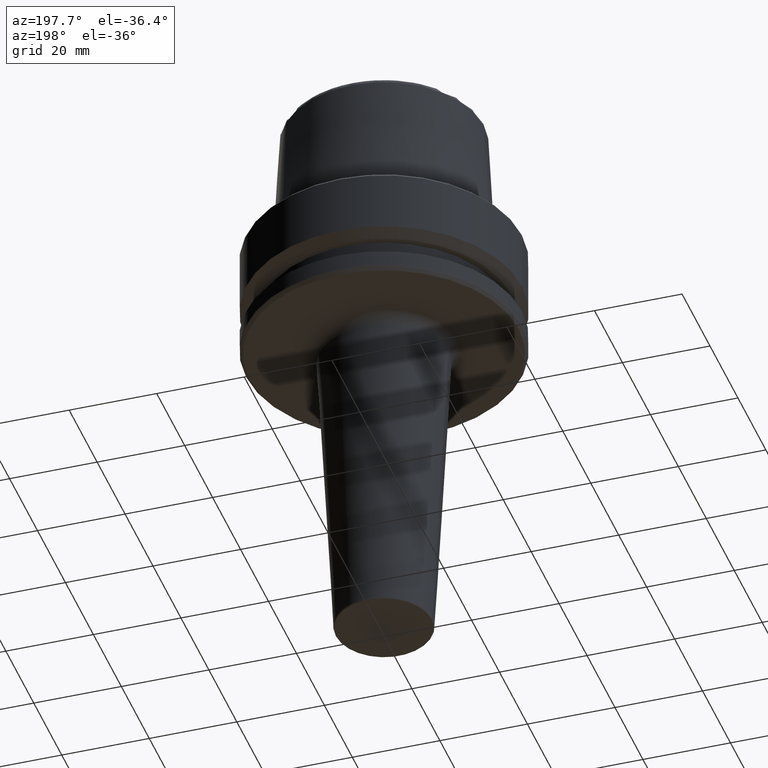
[diagram: clean part render]
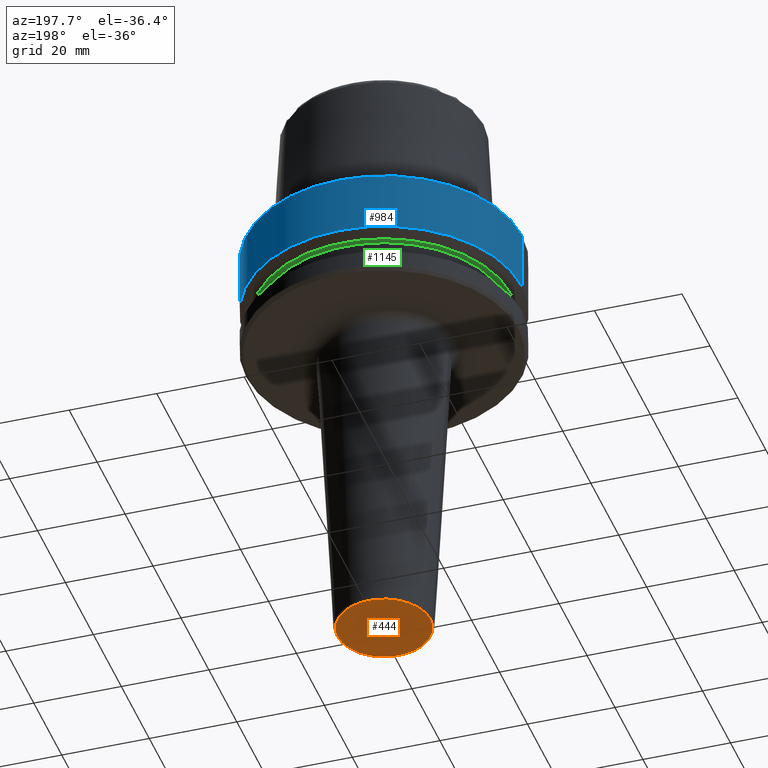
[diagram: same view with three faces highlighted in distinct colors, each labeled with its STEP entity id]
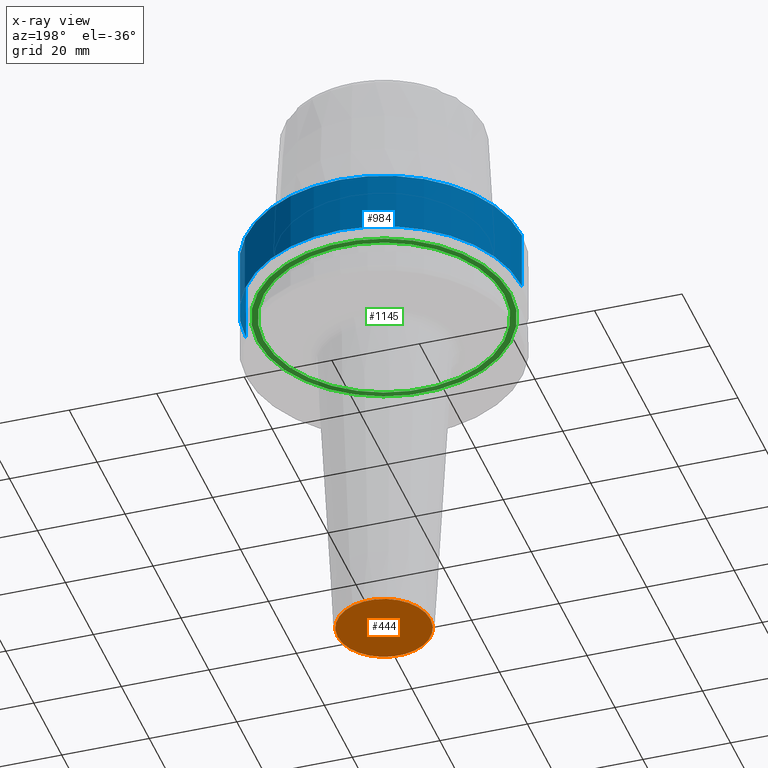
[diagram: x-ray of the same camera — body ghosted, the three highlighted faces saturated]
A machine part, auxiliary view with three faces highlighted in distinct colors.
The next image is the same camera in x-ray (body ghosted, the three faces saturated) — at least one of them is partly hidden behind the body in this view.
Their STEP definitions:

[orange] entity #444 — the highlighted planar face has unit normal (0, -0, 1).
#81 = ORIENTED_EDGE ( 'NONE', *, *, #314, .F. ) ;
#122 = DIRECTION ( 'NONE',  ( 1.000000000000000000, 0.0000000000000000000, 0.0000000000000000000 ) ) ;
#125 = CARTESIAN_POINT ( 'NONE',  ( 0.0000000000000000000, 0.0000000000000000000, -100.0000000000000000 ) ) ;
#144 = EDGE_LOOP ( 'NONE', ( #81, #1113 ) ) ;
#195 = PLANE ( 'NONE',  #1063 ) ;
#211 = DIRECTION ( 'NONE',  ( -0.0000000000000000000, -0.0000000000000000000, 1.000000000000000000 ) ) ;
#262 = CARTESIAN_POINT ( 'NONE',  ( 0.0000000000000000000, 0.0000000000000000000, -100.0000000000000000 ) ) ;
#286 = FACE_OUTER_BOUND ( 'NONE', #144, .T. ) ;
#298 = CIRCLE ( 'NONE', #414, 10.62041417331405000 ) ;
#314 = EDGE_CURVE ( 'NONE', #546, #1069, #1150, .T. ) ;
#392 = DIRECTION ( 'NONE',  ( 0.0000000000000000000, -0.0000000000000000000, 1.000000000000000000 ) ) ;
#414 = AXIS2_PLACEMENT_3D ( 'NONE', #262, #936, #1032 ) ;
#444 = ADVANCED_FACE ( 'NONE', ( #286 ), #195, .F. ) ;
#446 = EDGE_CURVE ( 'NONE', #1069, #546, #298, .T. ) ;
#546 = VERTEX_POINT ( 'NONE', #653 ) ;
#653 = CARTESIAN_POINT ( 'NONE',  ( 10.62041417331405000, 0.0000000000000000000, -100.0000000000000000 ) ) ;
#668 = CARTESIAN_POINT ( 'NONE',  ( 0.0000000000000000000, 10.62041417331405000, -100.0000000000000000 ) ) ;
#881 = DIRECTION ( 'NONE',  ( 1.000000000000000000, 0.0000000000000000000, 0.0000000000000000000 ) ) ;
#936 = DIRECTION ( 'NONE',  ( -0.0000000000000000000, -0.0000000000000000000, 1.000000000000000000 ) ) ;
#1032 = DIRECTION ( 'NONE',  ( 1.000000000000000000, 0.0000000000000000000, 0.0000000000000000000 ) ) ;
#1063 = AXIS2_PLACEMENT_3D ( 'NONE', #668, #392, #881 ) ;
#1069 = VERTEX_POINT ( 'NONE', #1118 ) ;
#1113 = ORIENTED_EDGE ( 'NONE', *, *, #446, .F. ) ;
#1118 = CARTESIAN_POINT ( 'NONE',  ( -10.62041417331405000, 1.325084991562247200E-015, -100.0000000000000000 ) ) ;
#1150 = CIRCLE ( 'NONE', #1198, 10.62041417331405000 ) ;
#1198 = AXIS2_PLACEMENT_3D ( 'NONE', #125, #211, #122 ) ;

[blue] entity #984 — the highlighted cylindrical surface (partial cylindrical patch) has radius 31.5 mm, axis along (-0, -0, 1).
#16 = CARTESIAN_POINT ( 'NONE',  ( 0.0000000000000000000, 0.0000000000000000000, -0.9656854249492363700 ) ) ;
#65 = VECTOR ( 'NONE', #111, 1000.000000000000000 ) ;
#77 = DIRECTION ( 'NONE',  ( -0.0000000000000000000, -0.0000000000000000000, 1.000000000000000000 ) ) ;
#78 = VERTEX_POINT ( 'NONE', #736 ) ;
#82 = FACE_OUTER_BOUND ( 'NONE', #421, .T. ) ;
#92 = EDGE_CURVE ( 'NONE', #857, #78, #1230, .T. ) ;
#96 = CARTESIAN_POINT ( 'NONE',  ( -31.50000000000000000, 3.857637417314162700E-015, -14.62250092524070100 ) ) ;
#104 = CARTESIAN_POINT ( 'NONE',  ( 0.0000000000000000000, 0.0000000000000000000, 78.96908074195309300 ) ) ;
#109 = AXIS2_PLACEMENT_3D ( 'NONE', #104, #186, #721 ) ;
#111 = DIRECTION ( 'NONE',  ( -0.0000000000000000000, -0.0000000000000000000, 1.000000000000000000 ) ) ;
#116 = CARTESIAN_POINT ( 'NONE',  ( -31.50000000000000000, 3.857637417314162700E-015, 78.96908074195309300 ) ) ;
#147 = CYLINDRICAL_SURFACE ( 'NONE', #109, 31.50000000000000000 ) ;
#166 = EDGE_CURVE ( 'NONE', #1157, #78, #1054, .T. ) ;
#186 = DIRECTION ( 'NONE',  ( -0.0000000000000000000, -0.0000000000000000000, 1.000000000000000000 ) ) ;
#224 = CARTESIAN_POINT ( 'NONE',  ( 31.50000000000000000, 0.0000000000000000000, 78.96908074195309300 ) ) ;
#421 = EDGE_LOOP ( 'NONE', ( #884, #1192, #1092, #861 ) ) ;
#423 = CARTESIAN_POINT ( 'NONE',  ( 31.50000000000000700, 0.0000000000000000000, -0.9656854249492363700 ) ) ;
#505 = EDGE_CURVE ( 'NONE', #1132, #1157, #703, .T. ) ;
#675 = DIRECTION ( 'NONE',  ( 1.000000000000000000, 0.0000000000000000000, 0.0000000000000000000 ) ) ;
#703 = CIRCLE ( 'NONE', #746, 31.50000000000000000 ) ;
#716 = DIRECTION ( 'NONE',  ( 1.000000000000000000, 0.0000000000000000000, 0.0000000000000000000 ) ) ;
#721 = DIRECTION ( 'NONE',  ( 1.000000000000000000, 0.0000000000000000000, 0.0000000000000000000 ) ) ;
#726 = EDGE_CURVE ( 'NONE', #1132, #857, #1007, .T. ) ;
#736 = CARTESIAN_POINT ( 'NONE',  ( -31.50000000000000700, 3.857637417314163500E-015, -0.9656854249492363700 ) ) ;
#746 = AXIS2_PLACEMENT_3D ( 'NONE', #774, #77, #675 ) ;
#756 = DIRECTION ( 'NONE',  ( -0.0000000000000000000, -0.0000000000000000000, 1.000000000000000000 ) ) ;
#774 = CARTESIAN_POINT ( 'NONE',  ( 0.0000000000000000000, 0.0000000000000000000, -14.62250092524070100 ) ) ;
#857 = VERTEX_POINT ( 'NONE', #423 ) ;
#861 = ORIENTED_EDGE ( 'NONE', *, *, #726, .F. ) ;
#884 = ORIENTED_EDGE ( 'NONE', *, *, #505, .T. ) ;
#938 = AXIS2_PLACEMENT_3D ( 'NONE', #16, #1136, #716 ) ;
#984 = ADVANCED_FACE ( 'NONE', ( #82 ), #147, .T. ) ;
#985 = CARTESIAN_POINT ( 'NONE',  ( 31.50000000000000000, 0.0000000000000000000, -14.62250092524070100 ) ) ;
#1007 = LINE ( 'NONE', #224, #65 ) ;
#1054 = LINE ( 'NONE', #116, #1107 ) ;
#1092 = ORIENTED_EDGE ( 'NONE', *, *, #92, .F. ) ;
#1107 = VECTOR ( 'NONE', #756, 1000.000000000000000 ) ;
#1132 = VERTEX_POINT ( 'NONE', #985 ) ;
#1136 = DIRECTION ( 'NONE',  ( -0.0000000000000000000, -0.0000000000000000000, 1.000000000000000000 ) ) ;
#1157 = VERTEX_POINT ( 'NONE', #96 ) ;
#1192 = ORIENTED_EDGE ( 'NONE', *, *, #166, .T. ) ;
#1230 = CIRCLE ( 'NONE', #938, 31.50000000000000700 ) ;

[green] entity #1145 — the highlighted planar face has unit normal (0, -0, 1).
#20 = DIRECTION ( 'NONE',  ( -0.0000000000000000000, -0.0000000000000000000, 1.000000000000000000 ) ) ;
#34 = FACE_BOUND ( 'NONE', #1244, .T. ) ;
#66 = AXIS2_PLACEMENT_3D ( 'NONE', #416, #1180, #1163 ) ;
#101 = CIRCLE ( 'NONE', #66, 27.49999999999999600 ) ;
#161 = CIRCLE ( 'NONE', #1027, 28.94089653438085100 ) ;
#249 = AXIS2_PLACEMENT_3D ( 'NONE', #999, #631, #1202 ) ;
#278 = ORIENTED_EDGE ( 'NONE', *, *, #1023, .F. ) ;
#323 = PLANE ( 'NONE',  #691 ) ;
#339 = DIRECTION ( 'NONE',  ( 1.000000000000000000, 0.0000000000000000000, 0.0000000000000000000 ) ) ;
#406 = FACE_OUTER_BOUND ( 'NONE', #843, .T. ) ;
#416 = CARTESIAN_POINT ( 'NONE',  ( 0.0000000000000000000, 0.0000000000000000000, -16.10000000000001600 ) ) ;
#422 = VERTEX_POINT ( 'NONE', #539 ) ;
#443 = EDGE_CURVE ( 'NONE', #732, #779, #161, .T. ) ;
#460 = DIRECTION ( 'NONE',  ( 1.000000000000000000, 0.0000000000000000000, 0.0000000000000000000 ) ) ;
#492 = CARTESIAN_POINT ( 'NONE',  ( 28.94089653438085100, 0.0000000000000000000, -16.10000000000001600 ) ) ;
#500 = DIRECTION ( 'NONE',  ( -0.0000000000000000000, -0.0000000000000000000, 1.000000000000000000 ) ) ;
#539 = CARTESIAN_POINT ( 'NONE',  ( -27.49999999999999600, 3.367778697655220900E-015, -16.10000000000001600 ) ) ;
#581 = ORIENTED_EDGE ( 'NONE', *, *, #749, .T. ) ;
#590 = DIRECTION ( 'NONE',  ( 0.0000000000000000000, -0.0000000000000000000, 1.000000000000000000 ) ) ;
#625 = VERTEX_POINT ( 'NONE', #1122 ) ;
#631 = DIRECTION ( 'NONE',  ( -0.0000000000000000000, -0.0000000000000000000, 1.000000000000000000 ) ) ;
#639 = ORIENTED_EDGE ( 'NONE', *, *, #1083, .T. ) ;
#691 = AXIS2_PLACEMENT_3D ( 'NONE', #994, #590, #460 ) ;
#719 = CARTESIAN_POINT ( 'NONE',  ( 0.0000000000000000000, 0.0000000000000000000, -16.10000000000001600 ) ) ;
#732 = VERTEX_POINT ( 'NONE', #492 ) ;
#744 = ORIENTED_EDGE ( 'NONE', *, *, #443, .F. ) ;
#749 = EDGE_CURVE ( 'NONE', #625, #422, #101, .T. ) ;
#779 = VERTEX_POINT ( 'NONE', #817 ) ;
#817 = CARTESIAN_POINT ( 'NONE',  ( -28.94089653438085100, 3.700937523921292900E-015, -16.10000000000001600 ) ) ;
#831 = CARTESIAN_POINT ( 'NONE',  ( 0.0000000000000000000, 0.0000000000000000000, -16.10000000000001600 ) ) ;
#843 = EDGE_LOOP ( 'NONE', ( #744, #278 ) ) ;
#874 = CIRCLE ( 'NONE', #1147, 27.49999999999999600 ) ;
#994 = CARTESIAN_POINT ( 'NONE',  ( 0.0000000000000000000, 28.94089653438085100, -16.10000000000000900 ) ) ;
#999 = CARTESIAN_POINT ( 'NONE',  ( 0.0000000000000000000, 0.0000000000000000000, -16.10000000000001600 ) ) ;
#1023 = EDGE_CURVE ( 'NONE', #779, #732, #1206, .T. ) ;
#1027 = AXIS2_PLACEMENT_3D ( 'NONE', #831, #500, #339 ) ;
#1083 = EDGE_CURVE ( 'NONE', #422, #625, #874, .T. ) ;
#1122 = CARTESIAN_POINT ( 'NONE',  ( 27.49999999999999600, 0.0000000000000000000, -16.10000000000001600 ) ) ;
#1145 = ADVANCED_FACE ( 'NONE', ( #406, #34 ), #323, .F. ) ;
#1147 = AXIS2_PLACEMENT_3D ( 'NONE', #719, #20, #1189 ) ;
#1163 = DIRECTION ( 'NONE',  ( 1.000000000000000000, 0.0000000000000000000, 0.0000000000000000000 ) ) ;
#1180 = DIRECTION ( 'NONE',  ( -0.0000000000000000000, -0.0000000000000000000, 1.000000000000000000 ) ) ;
#1189 = DIRECTION ( 'NONE',  ( 1.000000000000000000, 0.0000000000000000000, 0.0000000000000000000 ) ) ;
#1202 = DIRECTION ( 'NONE',  ( 1.000000000000000000, 0.0000000000000000000, 0.0000000000000000000 ) ) ;
#1206 = CIRCLE ( 'NONE', #249, 28.94089653438085100 ) ;
#1244 = EDGE_LOOP ( 'NONE', ( #581, #639 ) ) ;